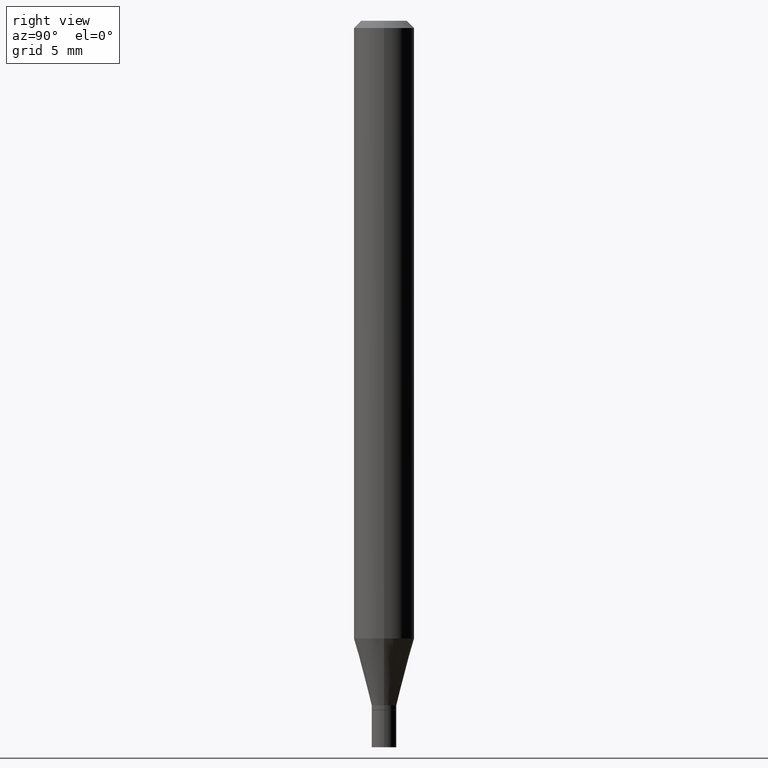
[diagram: clean part render]
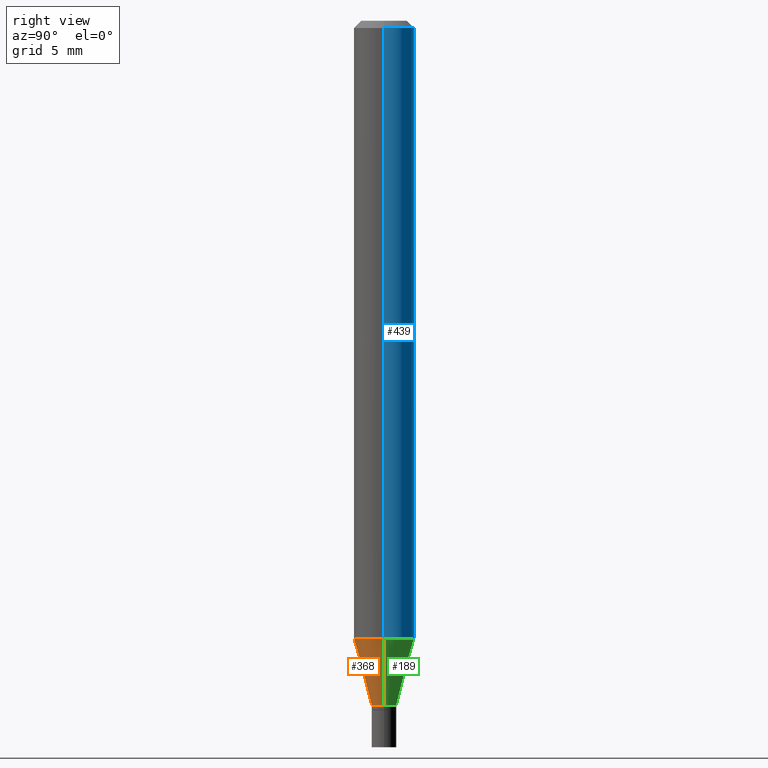
[diagram: same view with three faces highlighted in distinct colors, each labeled with its STEP entity id]
A machine part, right view with three faces highlighted in distinct colors.
Their STEP definitions:

[orange] entity #368 — the highlighted conical surface has half-angle 15 deg.
#18 = CONICAL_SURFACE ( 'NONE', #57, 0.02549999999999992203, 0.2617993877991494078 ) ;
#30 = CARTESIAN_POINT ( 'NONE',  ( 3.118985445721404190E-29, -4.453084599695860332E-15, -1.275414120119951367 ) ) ;
#54 = FACE_OUTER_BOUND ( 'NONE', #107, .T. ) ;
#57 = AXIS2_PLACEMENT_3D ( 'NONE', #200, #174, #356 ) ;
#63 = VERTEX_POINT ( 'NONE', #281 ) ;
#80 = CARTESIAN_POINT ( 'NONE',  ( 3.456670157542691158E-29, -4.935208872454787015E-15, -1.413500000000000201 ) ) ;
#96 = ORIENTED_EDGE ( 'NONE', *, *, #228, .T. ) ;
#101 = EDGE_CURVE ( 'NONE', #280, #253, #199, .T. ) ;
#107 = EDGE_LOOP ( 'NONE', ( #334, #96, #256, #410 ) ) ;
#129 = CIRCLE ( 'NONE', #342, 0.06250000000000000000 ) ;
#156 = AXIS2_PLACEMENT_3D ( 'NONE', #80, #328, #432 ) ;
#174 = DIRECTION ( 'NONE',  ( -2.445468806185136597E-29, 3.491481338843145583E-15, 1.000000000000000000 ) ) ;
#178 = DIRECTION ( 'NONE',  ( 1.000000000000000000, -6.982962677686262766E-15, 0.000000000000000000 ) ) ;
#199 = LINE ( 'NONE', #215, #325 ) ;
#200 = CARTESIAN_POINT ( 'NONE',  ( 3.456670157542691158E-29, -4.935208872454787015E-15, -1.413500000000000201 ) ) ;
#201 = EDGE_CURVE ( 'NONE', #466, #63, #260, .T. ) ;
#215 = CARTESIAN_POINT ( 'NONE',  ( 0.02549999999999992203, -5.113274420735785901E-15, -1.413500000000000201 ) ) ;
#228 = EDGE_CURVE ( 'NONE', #466, #280, #400, .T. ) ;
#253 = VERTEX_POINT ( 'NONE', #399 ) ;
#256 = ORIENTED_EDGE ( 'NONE', *, *, #101, .T. ) ;
#260 = LINE ( 'NONE', #323, #394 ) ;
#280 = VERTEX_POINT ( 'NONE', #371 ) ;
#281 = CARTESIAN_POINT ( 'NONE',  ( -0.06250000000000000000, -4.008995389845797716E-15, -1.275414120119951367 ) ) ;
#319 = CARTESIAN_POINT ( 'NONE',  ( -0.02549999999999992203, -4.381507932340880103E-15, -1.413500000000000201 ) ) ;
#323 = CARTESIAN_POINT ( 'NONE',  ( -0.02549999999999992203, -4.754020474835961701E-15, -1.413500000000000201 ) ) ;
#325 = VECTOR ( 'NONE', #381, 39.37007874015748854 ) ;
#326 = DIRECTION ( 'NONE',  ( -0.2588190451025206840, 5.211531920934545520E-15, 0.9659258262890682012 ) ) ;
#328 = DIRECTION ( 'NONE',  ( -2.445468806185136597E-29, 3.491481338843145583E-15, 1.000000000000000000 ) ) ;
#334 = ORIENTED_EDGE ( 'NONE', *, *, #201, .F. ) ;
#342 = AXIS2_PLACEMENT_3D ( 'NONE', #30, #348, #178 ) ;
#348 = DIRECTION ( 'NONE',  ( -2.445468806185136597E-29, 3.491481338843145583E-15, 1.000000000000000000 ) ) ;
#356 = DIRECTION ( 'NONE',  ( 1.000000000000000000, -6.982962677686258822E-15, 0.000000000000000000 ) ) ;
#368 = ADVANCED_FACE ( 'NONE', ( #54 ), #18, .T. ) ;
#371 = CARTESIAN_POINT ( 'NONE',  ( 0.02549999999999992203, -5.113274420735785901E-15, -1.413500000000000201 ) ) ;
#381 = DIRECTION ( 'NONE',  ( 0.2588190451025206840, 1.565188264969626504E-15, 0.9659258262890682012 ) ) ;
#394 = VECTOR ( 'NONE', #326, 39.37007874015748854 ) ;
#399 = CARTESIAN_POINT ( 'NONE',  ( 0.06250000000000000000, -4.889519767051251212E-15, -1.275414120119951367 ) ) ;
#400 = CIRCLE ( 'NONE', #156, 0.02549999999999992203 ) ;
#410 = ORIENTED_EDGE ( 'NONE', *, *, #452, .F. ) ;
#432 = DIRECTION ( 'NONE',  ( 1.000000000000000000, -6.982962677686258822E-15, 0.000000000000000000 ) ) ;
#452 = EDGE_CURVE ( 'NONE', #63, #253, #129, .T. ) ;
#466 = VERTEX_POINT ( 'NONE', #319 ) ;

[blue] entity #439 — the highlighted cylindrical surface (edge-blend (fillet) strip) has radius 1.5875 mm, axis along (-0, 0, 1).
#17 = CIRCLE ( 'NONE', #246, 0.06250000000000000000 ) ;
#21 = CARTESIAN_POINT ( 'NONE',  ( 3.668203209277705088E-31, -5.237222008264718399E-17, -0.01499999999999999944 ) ) ;
#40 = CARTESIAN_POINT ( 'NONE',  ( 0.06250000000000000000, -4.888073874380388472E-16, -0.01499999999999999944 ) ) ;
#58 = CARTESIAN_POINT ( 'NONE',  ( 0.06250000000000000000, -4.364351673553916694E-16, 3.047610484872459871E-30 ) ) ;
#63 = VERTEX_POINT ( 'NONE', #281 ) ;
#69 = VECTOR ( 'NONE', #177, 39.37007874015748143 ) ;
#75 = VECTOR ( 'NONE', #351, 39.37007874015748143 ) ;
#76 = EDGE_CURVE ( 'NONE', #253, #63, #17, .T. ) ;
#84 = AXIS2_PLACEMENT_3D ( 'NONE', #212, #382, #448 ) ;
#115 = ORIENTED_EDGE ( 'NONE', *, *, #391, .F. ) ;
#126 = FACE_OUTER_BOUND ( 'NONE', #427, .T. ) ;
#138 = LINE ( 'NONE', #329, #69 ) ;
#150 = CARTESIAN_POINT ( 'NONE',  ( 3.118985445721404190E-29, -4.453084599695860332E-15, -1.275414120119951367 ) ) ;
#158 = EDGE_CURVE ( 'NONE', #63, #335, #138, .T. ) ;
#165 = LINE ( 'NONE', #58, #75 ) ;
#177 = DIRECTION ( 'NONE',  ( -2.445468806185136877E-29, 3.491481338843145188E-15, 1.000000000000000000 ) ) ;
#206 = ORIENTED_EDGE ( 'NONE', *, *, #76, .T. ) ;
#212 = CARTESIAN_POINT ( 'NONE',  ( 0.000000000000000000, 0.000000000000000000, 0.000000000000000000 ) ) ;
#233 = VERTEX_POINT ( 'NONE', #40 ) ;
#246 = AXIS2_PLACEMENT_3D ( 'NONE', #150, #291, #408 ) ;
#253 = VERTEX_POINT ( 'NONE', #399 ) ;
#271 = CARTESIAN_POINT ( 'NONE',  ( -0.06250000000000000000, -1.808639200039190892E-15, -0.01499999999999999944 ) ) ;
#281 = CARTESIAN_POINT ( 'NONE',  ( -0.06250000000000000000, -4.008995389845797716E-15, -1.275414120119951367 ) ) ;
#286 = DIRECTION ( 'NONE',  ( -2.445468806185136597E-29, 3.491481338843145583E-15, 1.000000000000000000 ) ) ;
#291 = DIRECTION ( 'NONE',  ( -2.445468806185136597E-29, 3.491481338843145583E-15, 1.000000000000000000 ) ) ;
#298 = AXIS2_PLACEMENT_3D ( 'NONE', #21, #286, #313 ) ;
#313 = DIRECTION ( 'NONE',  ( 1.000000000000000000, -6.982962677686266711E-15, 0.000000000000000000 ) ) ;
#329 = CARTESIAN_POINT ( 'NONE',  ( -0.06250000000000000000, 4.440892098500626162E-16, -3.074334431409316114E-30 ) ) ;
#335 = VERTEX_POINT ( 'NONE', #271 ) ;
#351 = DIRECTION ( 'NONE',  ( -2.445468806185136877E-29, 3.491481338843145188E-15, 1.000000000000000000 ) ) ;
#382 = DIRECTION ( 'NONE',  ( -2.445468806185136597E-29, 3.491481338843145583E-15, 1.000000000000000000 ) ) ;
#383 = CIRCLE ( 'NONE', #298, 0.06250000000000000000 ) ;
#386 = ORIENTED_EDGE ( 'NONE', *, *, #447, .F. ) ;
#391 = EDGE_CURVE ( 'NONE', #233, #335, #383, .T. ) ;
#399 = CARTESIAN_POINT ( 'NONE',  ( 0.06250000000000000000, -4.889519767051251212E-15, -1.275414120119951367 ) ) ;
#408 = DIRECTION ( 'NONE',  ( 1.000000000000000000, -6.982962677686262766E-15, 0.000000000000000000 ) ) ;
#427 = EDGE_LOOP ( 'NONE', ( #206, #451, #115, #386 ) ) ;
#439 = ADVANCED_FACE ( 'NONE', ( #126 ), #453, .T. ) ;
#447 = EDGE_CURVE ( 'NONE', #253, #233, #165, .T. ) ;
#448 = DIRECTION ( 'NONE',  ( 1.000000000000000000, -6.982962677686266711E-15, 4.876176775795935793E-29 ) ) ;
#451 = ORIENTED_EDGE ( 'NONE', *, *, #158, .T. ) ;
#453 = CYLINDRICAL_SURFACE ( 'NONE', #84, 0.06250000000000000000 ) ;

[green] entity #189 — the highlighted conical surface has half-angle 15 deg.
#15 = ORIENTED_EDGE ( 'NONE', *, *, #201, .T. ) ;
#17 = CIRCLE ( 'NONE', #246, 0.06250000000000000000 ) ;
#63 = VERTEX_POINT ( 'NONE', #281 ) ;
#76 = EDGE_CURVE ( 'NONE', #253, #63, #17, .T. ) ;
#101 = EDGE_CURVE ( 'NONE', #280, #253, #199, .T. ) ;
#106 = CARTESIAN_POINT ( 'NONE',  ( 3.456670157542691158E-29, -4.935208872454787015E-15, -1.413500000000000201 ) ) ;
#116 = AXIS2_PLACEMENT_3D ( 'NONE', #106, #433, #136 ) ;
#136 = DIRECTION ( 'NONE',  ( 1.000000000000000000, -6.982962677686258822E-15, 0.000000000000000000 ) ) ;
#150 = CARTESIAN_POINT ( 'NONE',  ( 3.118985445721404190E-29, -4.453084599695860332E-15, -1.275414120119951367 ) ) ;
#153 = ORIENTED_EDGE ( 'NONE', *, *, #101, .F. ) ;
#179 = ORIENTED_EDGE ( 'NONE', *, *, #241, .T. ) ;
#189 = ADVANCED_FACE ( 'NONE', ( #396 ), #353, .T. ) ;
#199 = LINE ( 'NONE', #215, #325 ) ;
#201 = EDGE_CURVE ( 'NONE', #466, #63, #260, .T. ) ;
#215 = CARTESIAN_POINT ( 'NONE',  ( 0.02549999999999992203, -5.113274420735785901E-15, -1.413500000000000201 ) ) ;
#241 = EDGE_CURVE ( 'NONE', #280, #466, #418, .T. ) ;
#246 = AXIS2_PLACEMENT_3D ( 'NONE', #150, #291, #408 ) ;
#253 = VERTEX_POINT ( 'NONE', #399 ) ;
#259 = DIRECTION ( 'NONE',  ( -2.445468806185136597E-29, 3.491481338843145583E-15, 1.000000000000000000 ) ) ;
#260 = LINE ( 'NONE', #323, #394 ) ;
#280 = VERTEX_POINT ( 'NONE', #371 ) ;
#281 = CARTESIAN_POINT ( 'NONE',  ( -0.06250000000000000000, -4.008995389845797716E-15, -1.275414120119951367 ) ) ;
#291 = DIRECTION ( 'NONE',  ( -2.445468806185136597E-29, 3.491481338843145583E-15, 1.000000000000000000 ) ) ;
#302 = ORIENTED_EDGE ( 'NONE', *, *, #76, .F. ) ;
#319 = CARTESIAN_POINT ( 'NONE',  ( -0.02549999999999992203, -4.381507932340880103E-15, -1.413500000000000201 ) ) ;
#323 = CARTESIAN_POINT ( 'NONE',  ( -0.02549999999999992203, -4.754020474835961701E-15, -1.413500000000000201 ) ) ;
#325 = VECTOR ( 'NONE', #381, 39.37007874015748854 ) ;
#326 = DIRECTION ( 'NONE',  ( -0.2588190451025206840, 5.211531920934545520E-15, 0.9659258262890682012 ) ) ;
#331 = EDGE_LOOP ( 'NONE', ( #179, #15, #302, #153 ) ) ;
#353 = CONICAL_SURFACE ( 'NONE', #116, 0.02549999999999992203, 0.2617993877991494078 ) ;
#371 = CARTESIAN_POINT ( 'NONE',  ( 0.02549999999999992203, -5.113274420735785901E-15, -1.413500000000000201 ) ) ;
#381 = DIRECTION ( 'NONE',  ( 0.2588190451025206840, 1.565188264969626504E-15, 0.9659258262890682012 ) ) ;
#394 = VECTOR ( 'NONE', #326, 39.37007874015748854 ) ;
#396 = FACE_OUTER_BOUND ( 'NONE', #331, .T. ) ;
#399 = CARTESIAN_POINT ( 'NONE',  ( 0.06250000000000000000, -4.889519767051251212E-15, -1.275414120119951367 ) ) ;
#401 = DIRECTION ( 'NONE',  ( 1.000000000000000000, -6.982962677686258822E-15, 0.000000000000000000 ) ) ;
#408 = DIRECTION ( 'NONE',  ( 1.000000000000000000, -6.982962677686262766E-15, 0.000000000000000000 ) ) ;
#418 = CIRCLE ( 'NONE', #454, 0.02549999999999992203 ) ;
#428 = CARTESIAN_POINT ( 'NONE',  ( 3.456670157542691158E-29, -4.935208872454787015E-15, -1.413500000000000201 ) ) ;
#433 = DIRECTION ( 'NONE',  ( -2.445468806185136597E-29, 3.491481338843145583E-15, 1.000000000000000000 ) ) ;
#454 = AXIS2_PLACEMENT_3D ( 'NONE', #428, #259, #401 ) ;
#466 = VERTEX_POINT ( 'NONE', #319 ) ;